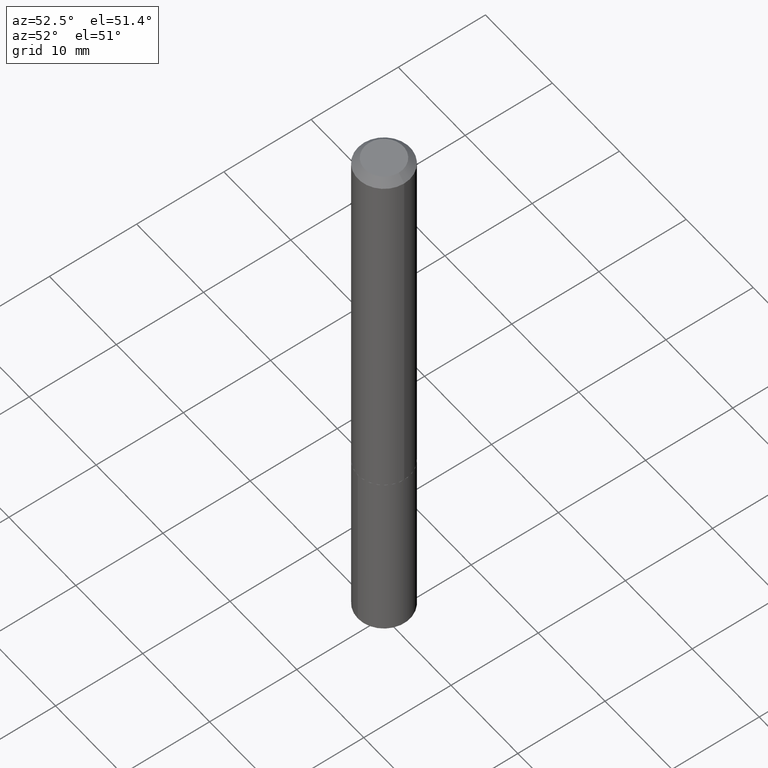
[diagram: clean part render]
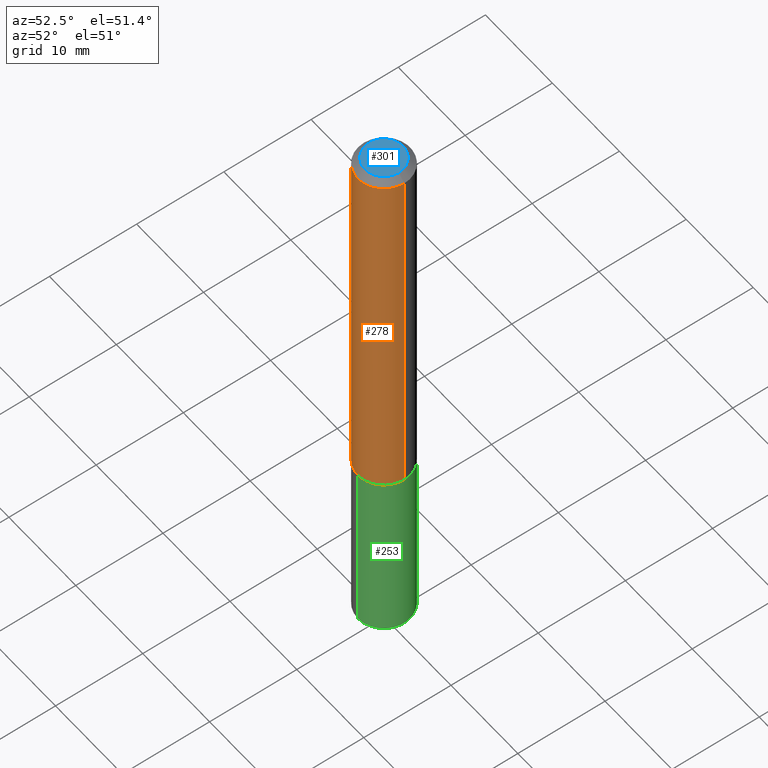
[diagram: same view with three faces highlighted in distinct colors, each labeled with its STEP entity id]
A machine part, auxiliary view with three faces highlighted in distinct colors.
Their STEP definitions:

[orange] entity #278 — the highlighted cylindrical surface (edge-blend (fillet) strip) has radius 2.9997 mm, axis along (-0, 0, 1).
#12 = VERTEX_POINT ( 'NONE', #176 ) ;
#16 = FACE_OUTER_BOUND ( 'NONE', #122, .T. ) ;
#39 = VERTEX_POINT ( 'NONE', #180 ) ;
#57 = EDGE_CURVE ( 'NONE', #39, #12, #64, .T. ) ;
#64 = CIRCLE ( 'NONE', #267, 0.1181000000000002187 ) ;
#74 = ORIENTED_EDGE ( 'NONE', *, *, #175, .T. ) ;
#83 = CARTESIAN_POINT ( 'NONE',  ( 0.1180999999999999966, -9.337966840735971660E-16, -0.03125000000000020123 ) ) ;
#85 = VECTOR ( 'NONE', #138, 39.37007874015748143 ) ;
#90 = ORIENTED_EDGE ( 'NONE', *, *, #57, .T. ) ;
#104 = CYLINDRICAL_SURFACE ( 'NONE', #132, 0.1181000000000001077 ) ;
#112 = DIRECTION ( 'NONE',  ( -2.445468806185136877E-29, 3.491481338843145188E-15, 1.000000000000000000 ) ) ;
#116 = AXIS2_PLACEMENT_3D ( 'NONE', #291, #192, #229 ) ;
#122 = EDGE_LOOP ( 'NONE', ( #283, #90, #74, #342 ) ) ;
#128 = CARTESIAN_POINT ( 'NONE',  ( 0.000000000000000000, 0.000000000000000000, 0.000000000000000000 ) ) ;
#132 = AXIS2_PLACEMENT_3D ( 'NONE', #128, #161, #135 ) ;
#135 = DIRECTION ( 'NONE',  ( 1.000000000000000000, -6.982962677686266711E-15, 4.876176775795935793E-29 ) ) ;
#138 = DIRECTION ( 'NONE',  ( -2.445468806185136877E-29, 3.491481338843145188E-15, 1.000000000000000000 ) ) ;
#151 = DIRECTION ( 'NONE',  ( 1.000000000000000000, -6.982962677686267499E-15, 0.000000000000000000 ) ) ;
#152 = CIRCLE ( 'NONE', #116, 0.1180999999999999966 ) ;
#161 = DIRECTION ( 'NONE',  ( -2.445468806185136597E-29, 3.491481338843145583E-15, 1.000000000000000000 ) ) ;
#175 = EDGE_CURVE ( 'NONE', #12, #379, #329, .T. ) ;
#176 = CARTESIAN_POINT ( 'NONE',  ( 0.1181000000000002187, -6.870886126709424325E-15, -1.731699999999999795 ) ) ;
#180 = CARTESIAN_POINT ( 'NONE',  ( -0.1181000000000002187, -5.207047263541994710E-15, -1.731699999999999795 ) ) ;
#192 = DIRECTION ( 'NONE',  ( -2.445468806185136597E-29, 3.491481338843145583E-15, 1.000000000000000000 ) ) ;
#209 = CARTESIAN_POINT ( 'NONE',  ( 4.234818331670800246E-29, -6.046198234474674485E-15, -1.731699999999999795 ) ) ;
#229 = DIRECTION ( 'NONE',  ( 1.000000000000000000, -6.982962677686266711E-15, 0.000000000000000000 ) ) ;
#238 = CARTESIAN_POINT ( 'NONE',  ( -0.1181000000000001077, 8.391509709326790846E-16, -5.809262341591049389E-30 ) ) ;
#252 = DIRECTION ( 'NONE',  ( -2.445468806185136597E-29, 3.491481338843145583E-15, 1.000000000000000000 ) ) ;
#267 = AXIS2_PLACEMENT_3D ( 'NONE', #209, #252, #151 ) ;
#270 = VECTOR ( 'NONE', #112, 39.37007874015748143 ) ;
#278 = ADVANCED_FACE ( 'NONE', ( #16 ), #104, .T. ) ;
#283 = ORIENTED_EDGE ( 'NONE', *, *, #356, .F. ) ;
#291 = CARTESIAN_POINT ( 'NONE',  ( 7.642090019328601786E-31, -1.091087918388490144E-16, -0.03125000000000020123 ) ) ;
#293 = CARTESIAN_POINT ( 'NONE',  ( 0.1181000000000001077, -8.246878922347488542E-16, 5.758764772215005345E-30 ) ) ;
#310 = EDGE_CURVE ( 'NONE', #374, #379, #152, .T. ) ;
#329 = LINE ( 'NONE', #293, #85 ) ;
#333 = CARTESIAN_POINT ( 'NONE',  ( -0.1180999999999999966, -2.238502542224082018E-15, -0.03125000000000020123 ) ) ;
#342 = ORIENTED_EDGE ( 'NONE', *, *, #310, .F. ) ;
#346 = LINE ( 'NONE', #238, #270 ) ;
#356 = EDGE_CURVE ( 'NONE', #39, #374, #346, .T. ) ;
#374 = VERTEX_POINT ( 'NONE', #333 ) ;
#379 = VERTEX_POINT ( 'NONE', #83 ) ;

[blue] entity #301 — the highlighted planar face has unit normal (0, -0, -1).
#2 = CIRCLE ( 'NONE', #282, 0.08684999999999999665 ) ;
#75 = DIRECTION ( 'NONE',  ( -2.445468806185136597E-29, 3.491481338843145583E-15, 1.000000000000000000 ) ) ;
#78 = PLANE ( 'NONE',  #316 ) ;
#98 = DIRECTION ( 'NONE',  ( 2.438088387897960049E-29, -3.491481338843145188E-15, -1.000000000000000000 ) ) ;
#134 = CARTESIAN_POINT ( 'NONE',  ( 1.768450389859457174E-46, -2.524878468802162243E-32, -7.231539348965118234E-18 ) ) ;
#158 = DIRECTION ( 'NONE',  ( 1.000000000000000000, -6.982962677686266711E-15, 4.875959881687004012E-29 ) ) ;
#159 = EDGE_LOOP ( 'NONE', ( #378, #182 ) ) ;
#182 = ORIENTED_EDGE ( 'NONE', *, *, #290, .T. ) ;
#184 = CARTESIAN_POINT ( 'NONE',  ( 3.536900779718914348E-46, -5.049756937604324485E-32, -1.446307869793023647E-17 ) ) ;
#221 = VERTEX_POINT ( 'NONE', #287 ) ;
#222 = DIRECTION ( 'NONE',  ( -1.000000000000000000, 6.982962677686265922E-15, -4.876176775795935793E-29 ) ) ;
#232 = DIRECTION ( 'NONE',  ( -2.445468806185136597E-29, 3.491481338843145583E-15, 1.000000000000000000 ) ) ;
#257 = CARTESIAN_POINT ( 'NONE',  ( 3.536900779718914348E-46, -5.049756937604324485E-32, -1.446307869793023647E-17 ) ) ;
#264 = DIRECTION ( 'NONE',  ( 1.000000000000000000, -6.982962677686266711E-15, 4.875959881687004012E-29 ) ) ;
#268 = CARTESIAN_POINT ( 'NONE',  ( 0.08684999999999999665, -7.575839282410621061E-16, -1.446307869792546941E-17 ) ) ;
#269 = EDGE_CURVE ( 'NONE', #221, #372, #2, .T. ) ;
#282 = AXIS2_PLACEMENT_3D ( 'NONE', #184, #232, #158 ) ;
#287 = CARTESIAN_POINT ( 'NONE',  ( -0.08684999999999999665, 6.610247044764755977E-16, -1.446307869793467073E-17 ) ) ;
#290 = EDGE_CURVE ( 'NONE', #372, #221, #330, .T. ) ;
#301 = ADVANCED_FACE ( 'NONE', ( #377 ), #78, .F. ) ;
#303 = AXIS2_PLACEMENT_3D ( 'NONE', #257, #75, #264 ) ;
#316 = AXIS2_PLACEMENT_3D ( 'NONE', #134, #98, #222 ) ;
#330 = CIRCLE ( 'NONE', #303, 0.08684999999999999665 ) ;
#372 = VERTEX_POINT ( 'NONE', #268 ) ;
#377 = FACE_OUTER_BOUND ( 'NONE', #159, .T. ) ;
#378 = ORIENTED_EDGE ( 'NONE', *, *, #269, .T. ) ;

[green] entity #253 — the highlighted cylindrical surface (edge-blend (fillet) strip) has radius 2.9997 mm, axis along (-0, 0, 1).
#17 = CIRCLE ( 'NONE', #243, 0.1180999999999999966 ) ;
#19 = EDGE_CURVE ( 'NONE', #129, #320, #307, .T. ) ;
#34 = ORIENTED_EDGE ( 'NONE', *, *, #239, .F. ) ;
#37 = DIRECTION ( 'NONE',  ( -2.443006926696286380E-29, 3.495006890392658410E-15, 1.000000000000000000 ) ) ;
#40 = DIRECTION ( 'NONE',  ( -2.443006926696286380E-29, 3.495006890392658016E-15, 1.000000000000000000 ) ) ;
#47 = DIRECTION ( 'NONE',  ( -6.982962677686265922E-15, -1.000000000000000000, 4.626330217890369336E-15 ) ) ;
#59 = AXIS2_PLACEMENT_3D ( 'NONE', #383, #40, #321 ) ;
#66 = EDGE_LOOP ( 'NONE', ( #119, #347, #34, #312 ) ) ;
#72 = LINE ( 'NONE', #117, #99 ) ;
#73 = DIRECTION ( 'NONE',  ( -2.443006926696286380E-29, 3.495006890392658016E-15, 1.000000000000000000 ) ) ;
#95 = CARTESIAN_POINT ( 'NONE',  ( 4.236041066073892487E-29, -6.047943975144095988E-15, -1.732199999999999518 ) ) ;
#99 = VECTOR ( 'NONE', #188, 39.37007874015748143 ) ;
#103 = VERTEX_POINT ( 'NONE', #354 ) ;
#105 = CARTESIAN_POINT ( 'NONE',  ( 6.247161294993890349E-29, -8.925086475508884590E-15, -2.555415115333162124 ) ) ;
#117 = CARTESIAN_POINT ( 'NONE',  ( -8.246878922347056641E-16, -0.1181000000000060474, -1.732199999999999074 ) ) ;
#119 = ORIENTED_EDGE ( 'NONE', *, *, #211, .T. ) ;
#129 = VERTEX_POINT ( 'NONE', #350 ) ;
#131 = CYLINDRICAL_SURFACE ( 'NONE', #59, 0.1180999999999999966 ) ;
#164 = EDGE_CURVE ( 'NONE', #103, #274, #72, .T. ) ;
#173 = AXIS2_PLACEMENT_3D ( 'NONE', #105, #323, #47 ) ;
#188 = DIRECTION ( 'NONE',  ( -2.443006926696286380E-29, 3.495006890392658410E-15, 1.000000000000000000 ) ) ;
#197 = DIRECTION ( 'NONE',  ( -6.982962677686265922E-15, -1.000000000000000000, 4.626330217890369336E-15 ) ) ;
#200 = CIRCLE ( 'NONE', #173, 0.1180999999999999966 ) ;
#211 = EDGE_CURVE ( 'NONE', #103, #129, #200, .T. ) ;
#239 = EDGE_CURVE ( 'NONE', #274, #320, #17, .T. ) ;
#243 = AXIS2_PLACEMENT_3D ( 'NONE', #95, #73, #197 ) ;
#253 = ADVANCED_FACE ( 'NONE', ( #317 ), #131, .T. ) ;
#274 = VERTEX_POINT ( 'NONE', #285 ) ;
#285 = CARTESIAN_POINT ( 'NONE',  ( -8.246878922347056641E-16, -0.1181000000000060474, -1.732199999999999074 ) ) ;
#306 = CARTESIAN_POINT ( 'NONE',  ( 8.391509709327204997E-16, 0.1180999999999939598, -1.732200000000000184 ) ) ;
#307 = LINE ( 'NONE', #306, #364 ) ;
#312 = ORIENTED_EDGE ( 'NONE', *, *, #164, .F. ) ;
#317 = FACE_OUTER_BOUND ( 'NONE', #66, .T. ) ;
#320 = VERTEX_POINT ( 'NONE', #355 ) ;
#321 = DIRECTION ( 'NONE',  ( -6.982962677686265922E-15, -1.000000000000000000, 4.626330217890369336E-15 ) ) ;
#323 = DIRECTION ( 'NONE',  ( -2.443006926696286380E-29, 3.495006890392658016E-15, 1.000000000000000000 ) ) ;
#347 = ORIENTED_EDGE ( 'NONE', *, *, #19, .T. ) ;
#350 = CARTESIAN_POINT ( 'NONE',  ( 8.391509709327407143E-16, 0.1180999999999910871, -2.555415115333162568 ) ) ;
#354 = CARTESIAN_POINT ( 'NONE',  ( -8.246878922346857454E-16, -0.1181000000000089339, -2.555415115333161236 ) ) ;
#355 = CARTESIAN_POINT ( 'NONE',  ( 8.391509709327408129E-16, 0.1180999999999939598, -1.732200000000000184 ) ) ;
#364 = VECTOR ( 'NONE', #37, 39.37007874015748143 ) ;
#383 = CARTESIAN_POINT ( 'NONE',  ( 4.236041066073892487E-29, -6.047943975144095988E-15, -1.732199999999999518 ) ) ;